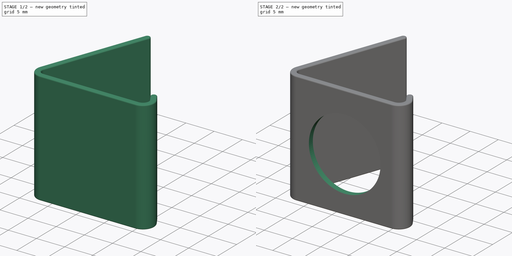
[diagram: build sequence overview — one tinted view per stage of 2, left to right]
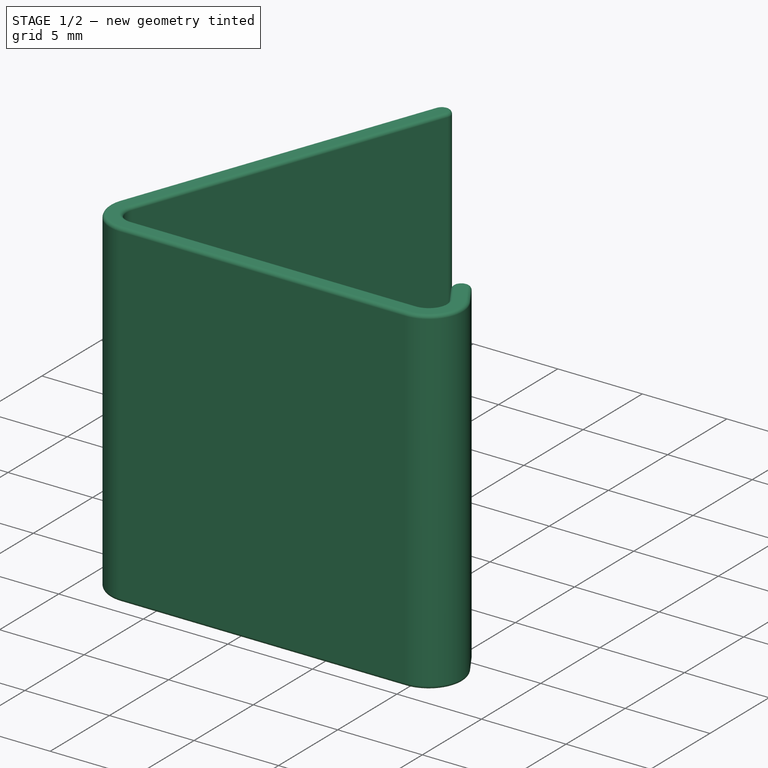
[diagram: stage 1 of 2 — iso view after this stage's code; geometry added in this stage tinted green]
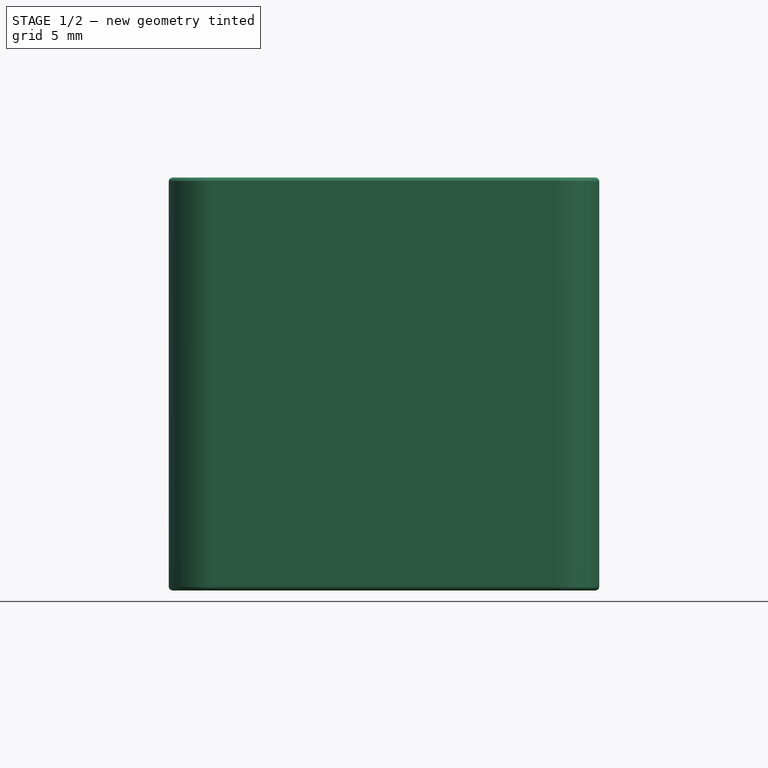
[diagram: stage 1 of 2 — front view after this stage's code; geometry added in this stage tinted green]
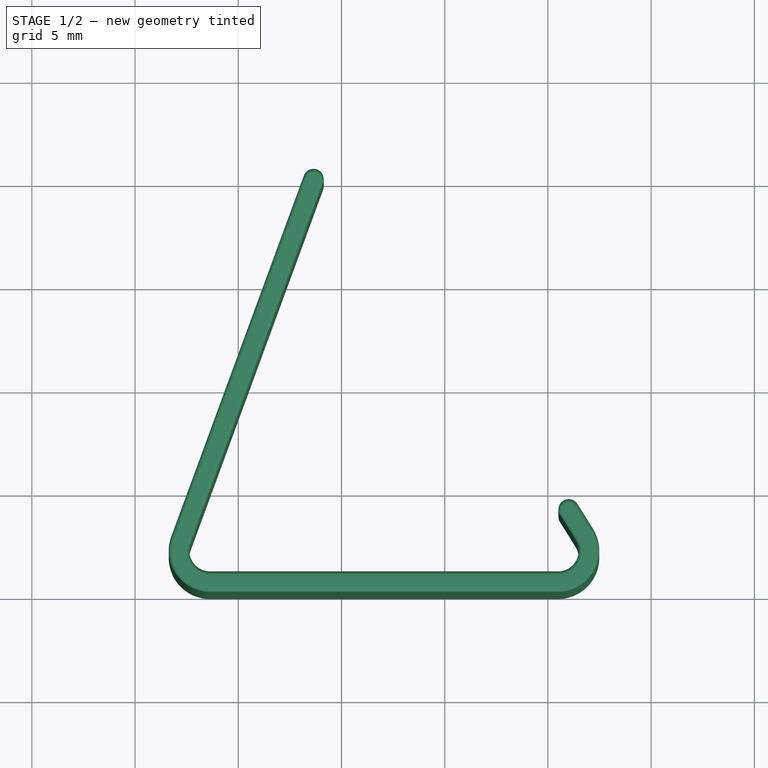
[diagram: stage 1 of 2 — top view after this stage's code; geometry added in this stage tinted green]
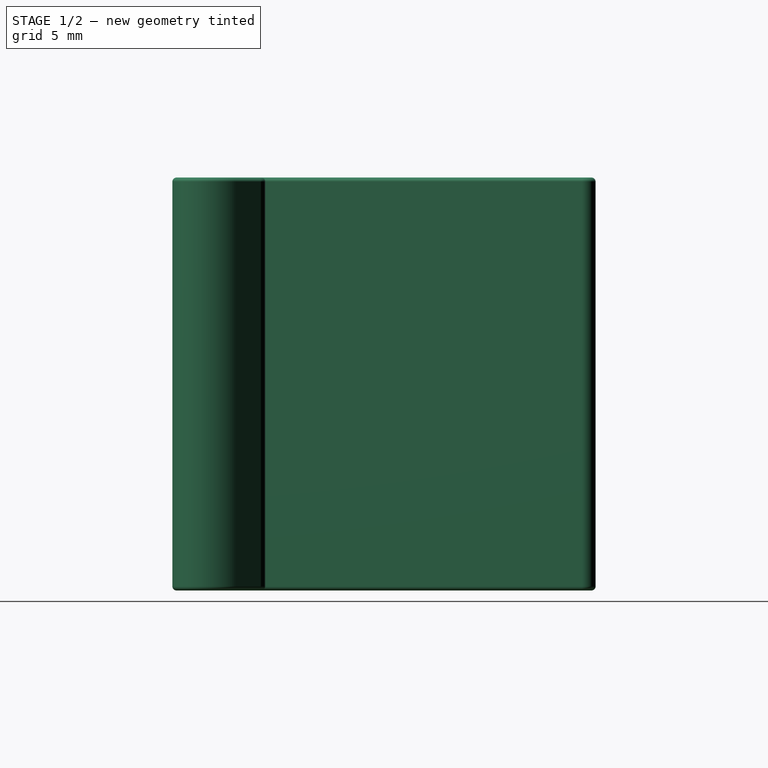
[diagram: stage 1 of 2 — right view after this stage's code; geometry added in this stage tinted green]
FCSTD DOCUMENT  (FreeCAD 0.20R27319 (Git))
Label: Plate Stand small 1 piece
License: All rights reserved
LicenseURL: http://en.wikipedia.org/wiki/All_rights_reserved
objects: Sketcher::SketchObject×2, PartDesign::Pad×1, PartDesign::Fillet×1, PartDesign::Pocket×1, PartDesign::Body×1
note: 9 computed .brp shape members not serialized (recipe doc carries the construction recipe); baked Part::Feature solids carry a one-line shape summary decoded from their .brp

FEATURE [Sketcher::SketchObject] Sketch
  FullyConstrained = false
  MapMode = 5
  Support = -> [XY_Plane]
  sketch-geometry (13):
    g0: LineSegment StartX=13.1748 StartY=20.1724 StartZ=0 EndX=6.75358 EndY=2.68954 EndZ=0
    g1: ArcOfCircle CenterX=8.63096 CenterY=2 CenterZ=0 NormalX=0 NormalY=0 NormalZ=1 AngleXU=0 Radius=2 StartAngle=2.7896 EndAngle=4.71239
    g2: LineSegment StartX=8.63096 StartY=0 StartZ=0 EndX=25.4858 EndY=1.6e-15 EndZ=0
    g3: LineSegment StartX=27.1817 StartY=3.06013 StartZ=0 EndX=26.4285 EndY=4.26503 EndZ=0
    g4: LineSegment StartX=25.5806 StartY=3.73497 StartZ=0 EndX=26.3338 EndY=2.53007 EndZ=0
    g5: LineSegment StartX=25.4858 StartY=1 StartZ=0 EndX=8.63096 EndY=1 EndZ=0
    g6: ArcOfCircle CenterX=8.63096 CenterY=2 CenterZ=0 NormalX=0 NormalY=0 NormalZ=1 AngleXU=0 Radius=1 StartAngle=2.7896 EndAngle=4.71239
    g7: LineSegment StartX=7.69227 StartY=2.34477 StartZ=0 EndX=14.1135 EndY=19.8276 EndZ=0
    g8: ArcOfCircle CenterX=26.0045 CenterY=4 CenterZ=0 NormalX=0 NormalY=0 NormalZ=1 AngleXU=0 Radius=0.5 StartAngle=0.558678 EndAngle=3.70027
    g9: ArcOfCircle CenterX=13.6442 CenterY=20 CenterZ=0 NormalX=0 NormalY=0 NormalZ=1 AngleXU=0 Radius=0.5 StartAngle=5.93119 EndAngle=9.07278
    g10: ArcOfCircle CenterX=25.4858 CenterY=2 CenterZ=0 NormalX=0 NormalY=0 NormalZ=1 AngleXU=0 Radius=1 StartAngle=4.71239 EndAngle=6.84186
    g11: ArcOfCircle CenterX=25.4858 CenterY=2 CenterZ=0 NormalX=0 NormalY=0 NormalZ=1 AngleXU=0 Radius=2 StartAngle=4.71239 EndAngle=6.84186
    g12: LineSegment StartX=26.0159 StartY=1.15204 StartZ=0 EndX=14.0682 EndY=20.265 EndZ=0
  constraints (30):
    c: Tangent(g0,g1) = -1.5708
    c: PointOnObject(g1,g-1)
    c: Horizontal(g5)
    c: Parallel(g0,g7)
    c: Parallel(g4,g3)
    c: Tangent(g8,g4) = -1.5708
    c: Tangent(g8,g3) = -1.5708
    c: Tangent(g9,g0) = -1.5708
    c: Tangent(g9,g7) = -1.5708
    c: Radius(g9) = 0.5
    c: Coincident(g1,g6)
    c: Tangent(g6,g7) = 1.5708
    c: Tangent(g5,g6) = 1.5708
    c: Tangent(g1,g2) = -1.5708
    c: DistanceY(g9) = 20
    c: Tangent(g4,g10) = 1.5708
    c: Tangent(g5,g10) = 1.5708
    c: Tangent(g2,g11) = -1.5708
    c: Tangent(g3,g11) = -1.5708
    c: Radius(g10) = 1
    c: Equal(g8,g9)
    c: Tangent(g12,g9) = -1.5708
    c: Coincident(g11,g10)
    c: PointOnObject(g12,g10)
    c: PointOnObject(g10,g12)
    c: Distance(g12) = 22.5401
    c: Angle(g12,g-1) = 1.01212
    c: Parallel(g4,g12)
    c: Equal(g6,g10)
    c: DistanceY(g2,g8) = 4
FEATURE [PartDesign::Pad] Pad
  Direction = (0,0,1)
  Length = 20
  Length2 = 10
  Profile = -> Sketch
  ReferenceAxis = -> Sketch [N_Axis]
  Type = 0
FEATURE [PartDesign::Fillet] Fillet
  Base = -> Pad [Face14,Face13]
  BaseFeature = -> Pad
  Radius = 0.2
  SupportTransform = false
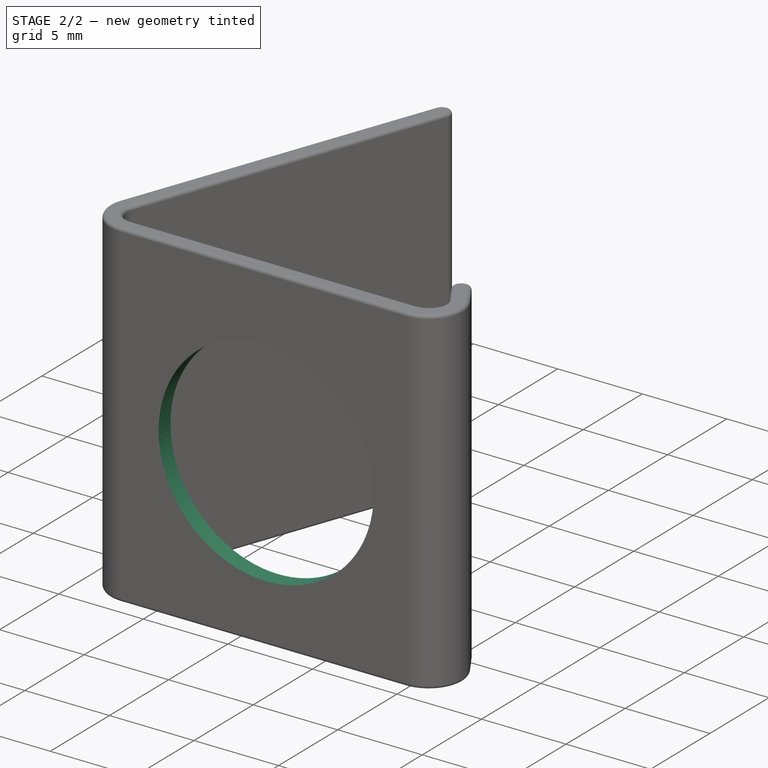
[diagram: stage 2 of 2 — iso view after this stage's code; geometry added in this stage tinted green]
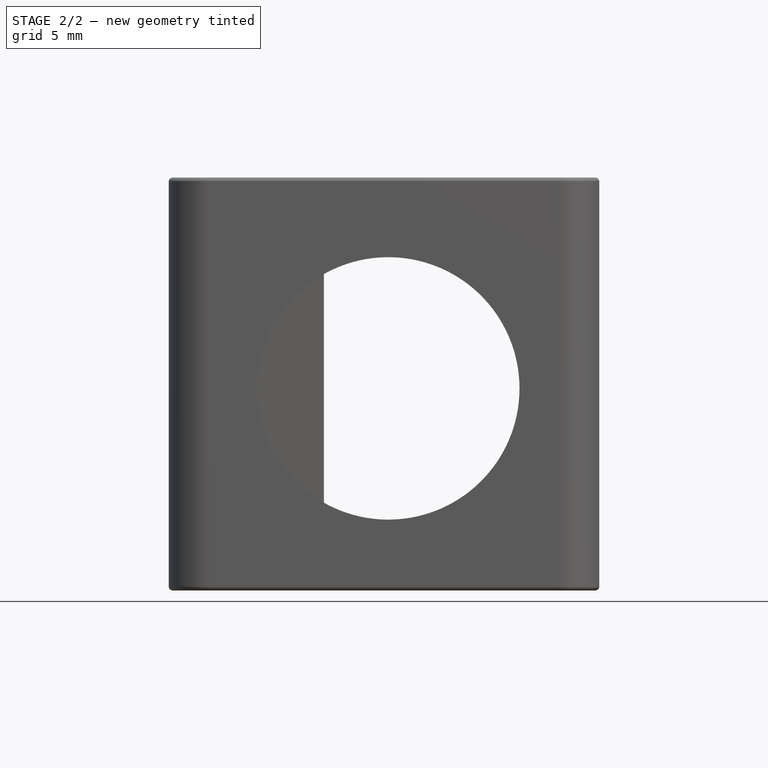
[diagram: stage 2 of 2 — front view after this stage's code; geometry added in this stage tinted green]
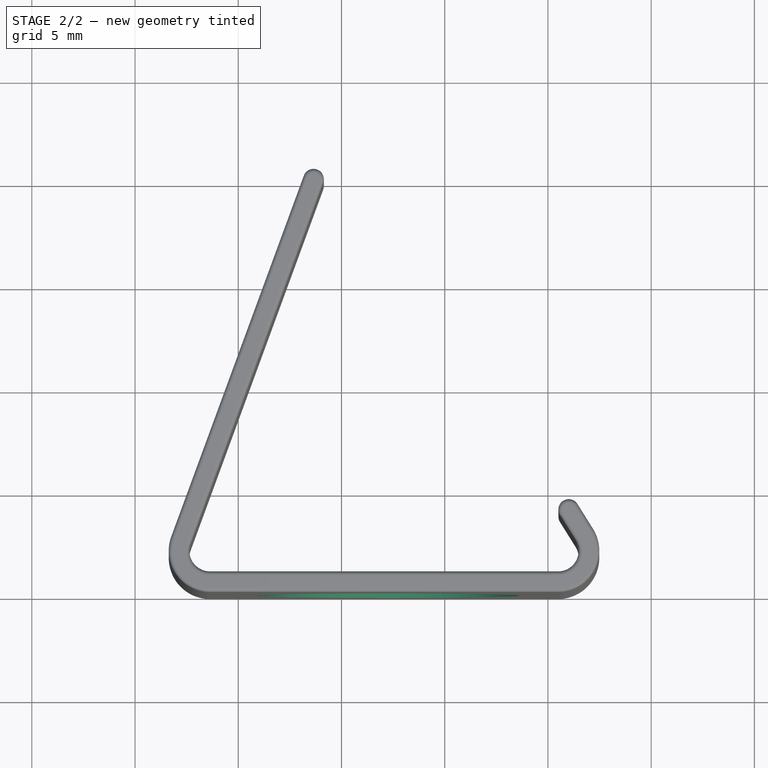
[diagram: stage 2 of 2 — top view after this stage's code; geometry added in this stage tinted green]
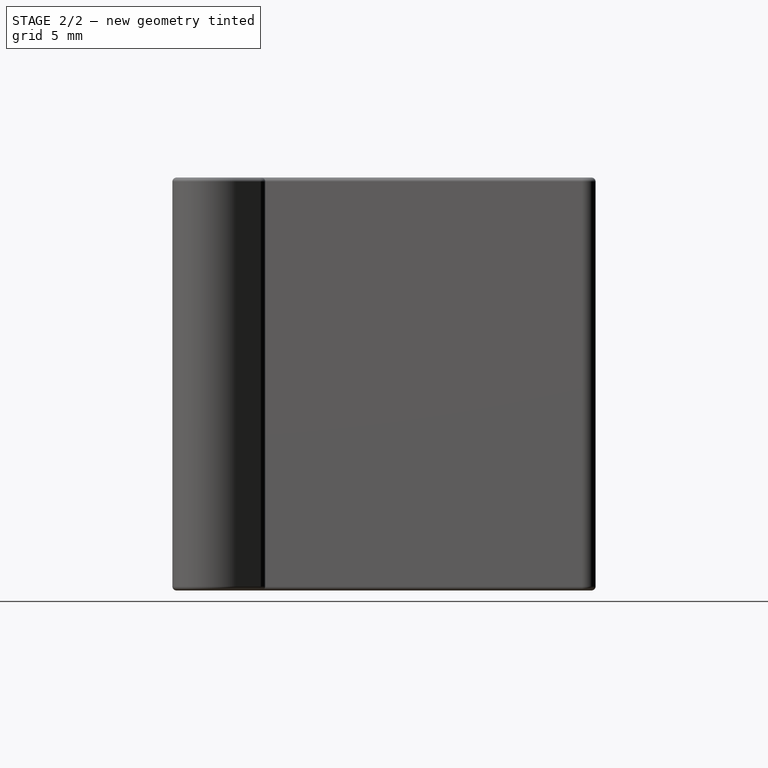
[diagram: stage 2 of 2 — right view after this stage's code; geometry added in this stage tinted green]
FEATURE [Sketcher::SketchObject] Sketch001
  FullyConstrained = false
  MapMode = 5
  Placement = pos=(0,-8e-16,0) rot=(1,0,0;1.5708rad)
  Support = -> [Fillet]
  sketch-geometry (1):
    g0: Circle CenterX=17.2661 CenterY=9.78687 CenterZ=0 NormalX=0 NormalY=0 NormalZ=1 AngleXU=0 Radius=6.35529
FEATURE [PartDesign::Pocket] Pocket
  BaseFeature = -> Fillet
  Direction = (-1e-16,1,-2e-16)
  Length = 5
  Length2 = 5
  Profile = -> Sketch001
  ReferenceAxis = -> Sketch001 [N_Axis]
  Type = 0
FEATURE [PartDesign::Body] Body
  Group = -> [Sketch,Pad,Fillet,Sketch001,Pocket]
  Origin = -> Origin
  Tip = -> Pocket
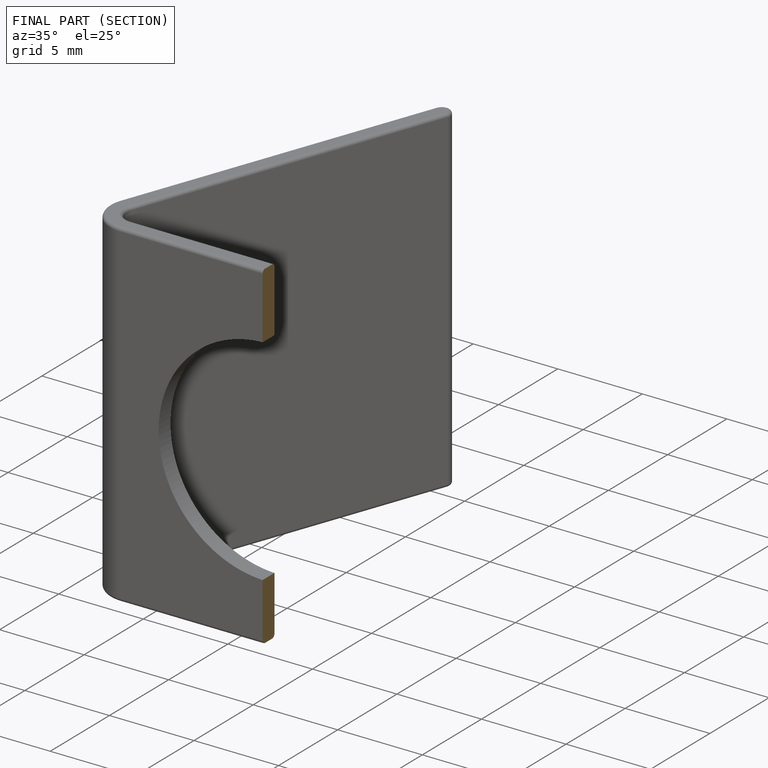
[diagram: finished part — half-section view (interior)]
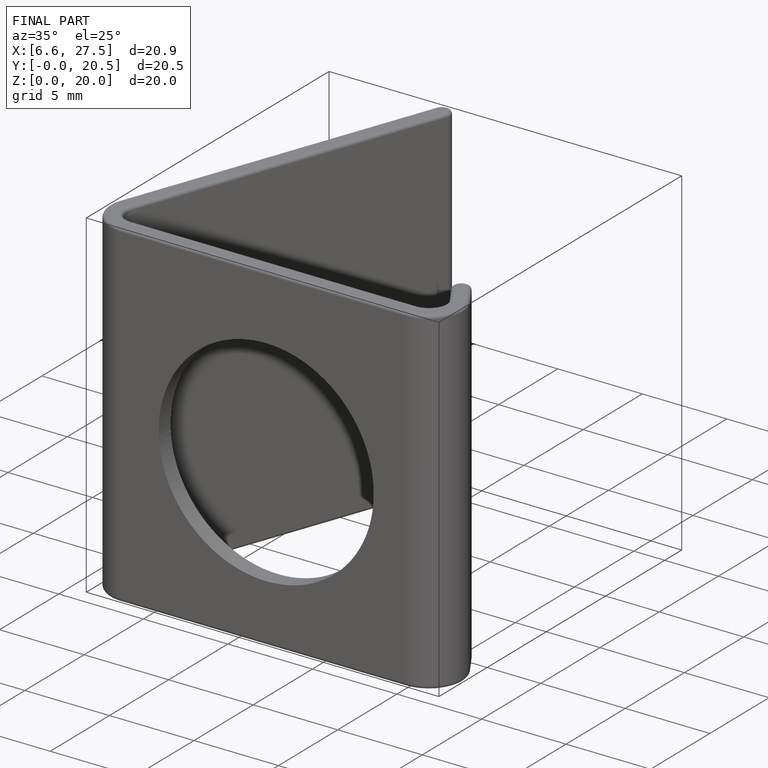
[diagram: finished part — iso view with bounding-box wireframe]
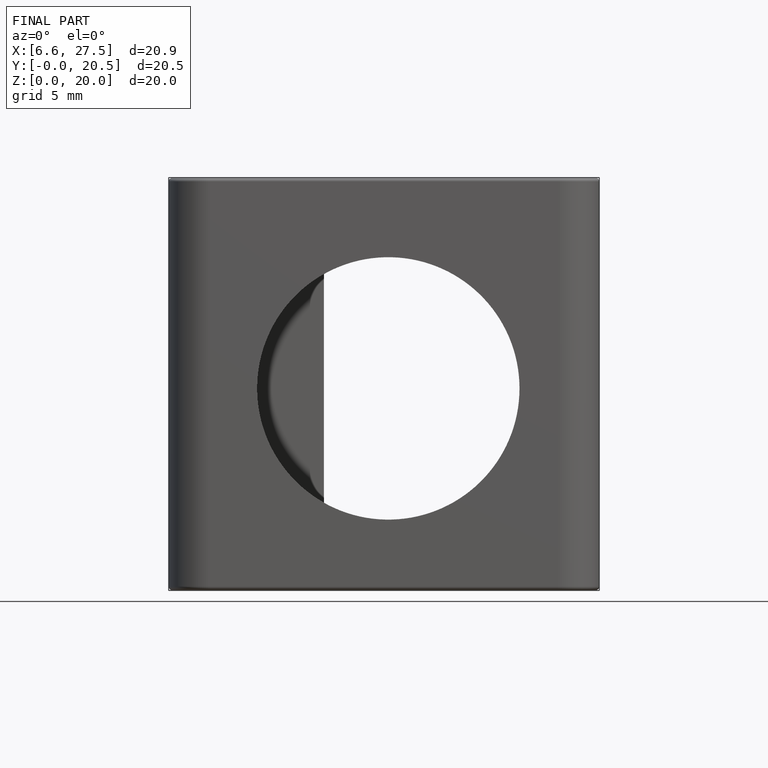
[diagram: finished part — front view with bounding-box wireframe]
